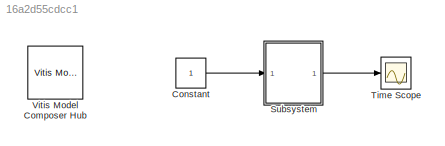
MODEL slx_16a2d55cdcc1
KIND model
CONFIG AbsTol = auto
CONFIG EnableMultiTasking = off
CONFIG FixedStep = auto
CONFIG InitFcn = f = 12.288e6;\nfs = 153.6e6;\nN = 2048;\nn = 0:N-1;\nHamming = 0.54 + 0.46 * cos(2*pi*n/N);\nHanning = 0.5 * (1 + cos(2*pi*n/N));\nNorm_Ham = sum(Hamming);\nNorm_Han = sum(Hanning);
CONFIG MaxStep = auto
CONFIG MinStep = auto
CONFIG RelTol = 1e-3
CONFIG SampleTimeConstraint = Unconstrained
CONFIG SolverName = VariableStepAuto
CONFIG StartTime = 0.0
CONFIG StopTime = 10.0
BLOCK [Constant] Constant
  SampleTime = 1/fs
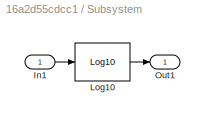
BLOCK [SubSystem] Subsystem
  Ports = [1, 1]
  RequestExecContextInheritance = off
BLOCK [Inport] Subsystem/In1
BLOCK [Reference] Subsystem/Log10  REF=hlsMath/Log10
  Ports = [1, 1]
  SourceBlock = hlsMath/Log10
  SourceType = Decadic Logarithm
BLOCK [Outport] Subsystem/Out1
BLOCK [Scope] Time Scope
  DefaultConfigurationName = spbscopes.TimeScopeBlockCfg
  Floating = off
  NumInputPorts = 1
  Ports = [1]
  ScopeSpecificationString = spbscopes.TimeScopeBlockCfg('CurrentConfiguration', extmgr.ConfigurationSet(extmgr.Configuration('Core','General UI',true,'FigureColor',[0.156862745098039 0.156862745098039 0.156862745098039]),extmgr.Configuration('Core','Source UI',true),extmgr.Configuration('Sources','WiredSimulink',true),extmgr.Configuration('Visuals','Time Domain',true,'DisplayPropertyDefaults',struct('MinYLimReal','-1.00000',...<+1397ch>
  UserDataPersistent = on
BLOCK [Reference] Vitis Model Composer Hub  REF=vmcUtilities/Vitis Model Composer Hub
  Ports = []
  SourceBlock = vmcUtilities/Vitis Model Composer Hub
  SourceType = Implementation
  Tag = genX
  UserDataPersistent = on
LINE Constant:1 -> Subsystem:1
LINE Subsystem/In1:1 -> Subsystem/Log10:1
LINE Subsystem/Log10:1 -> Subsystem/Out1:1
LINE Subsystem:1 -> Time Scope:1
